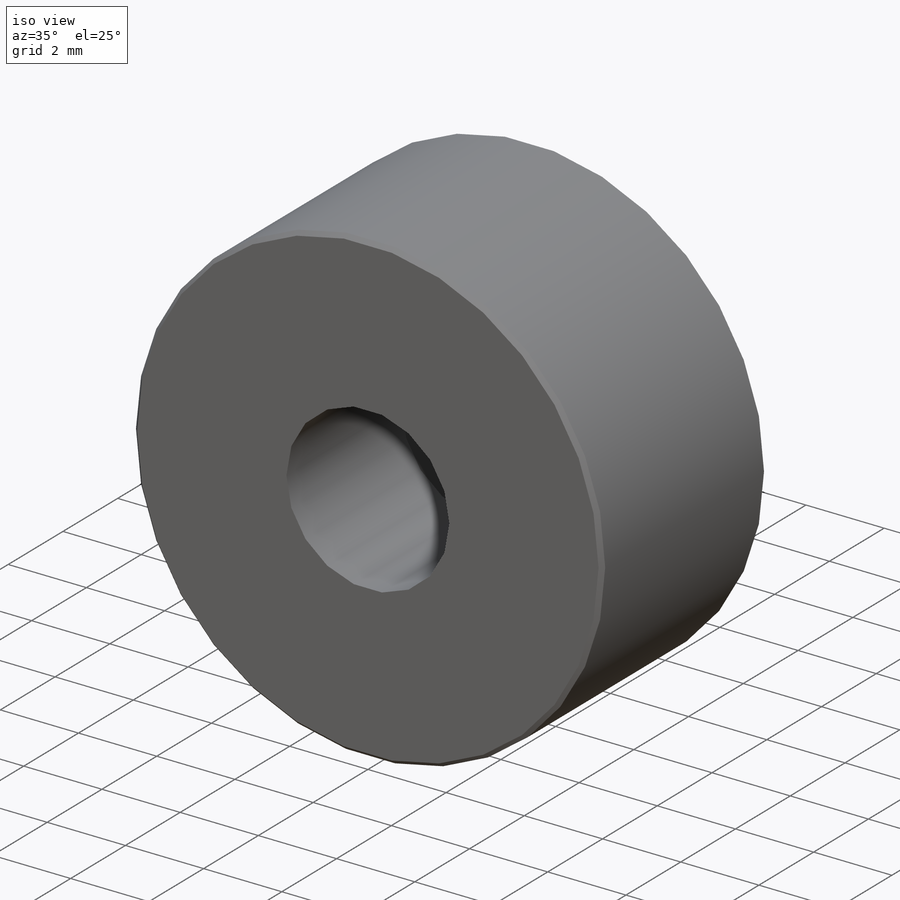
[diagram: iso view]
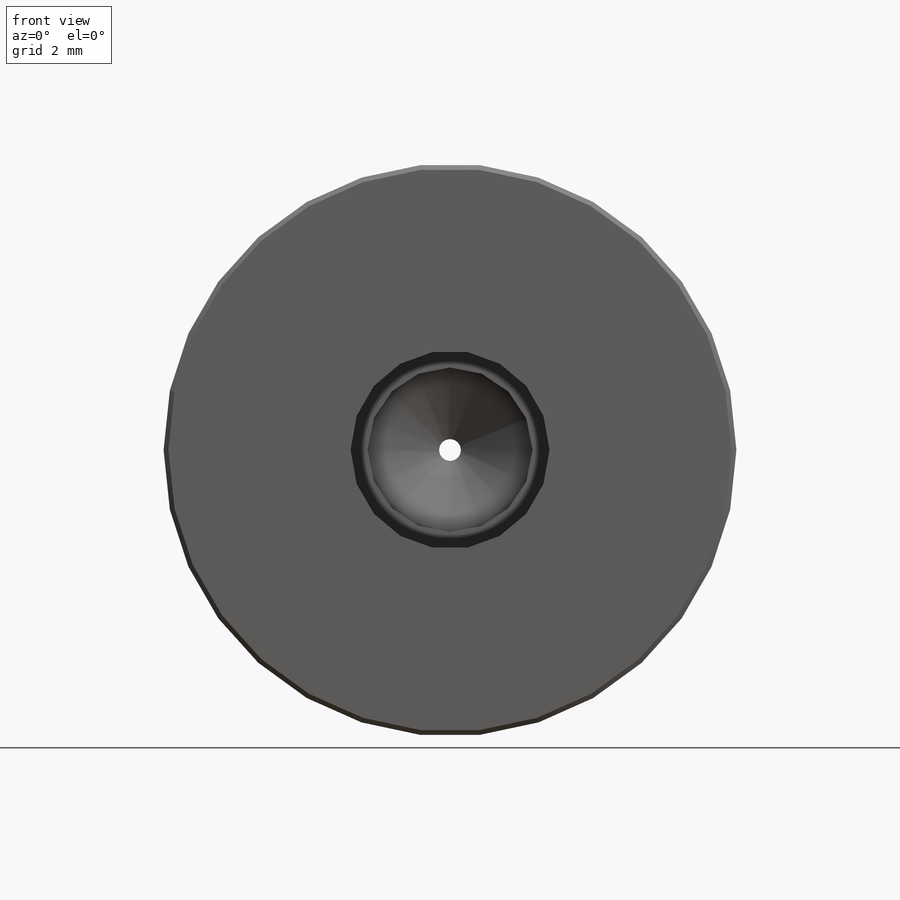
[diagram: front view]
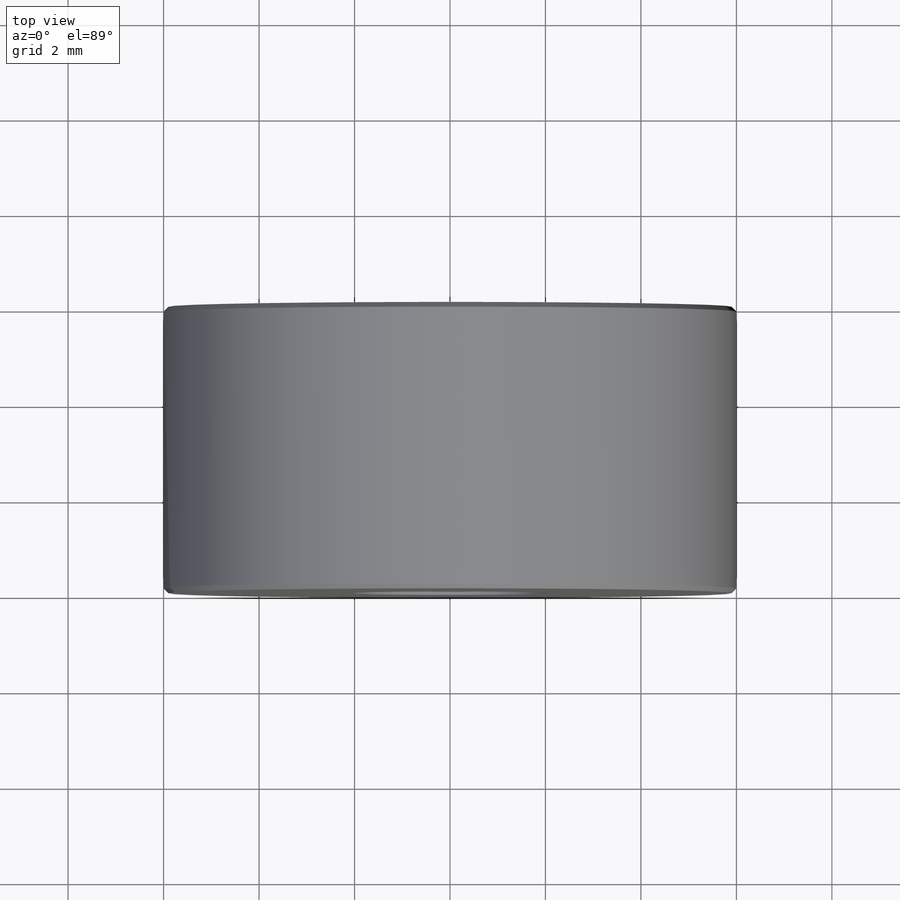
[diagram: top view]
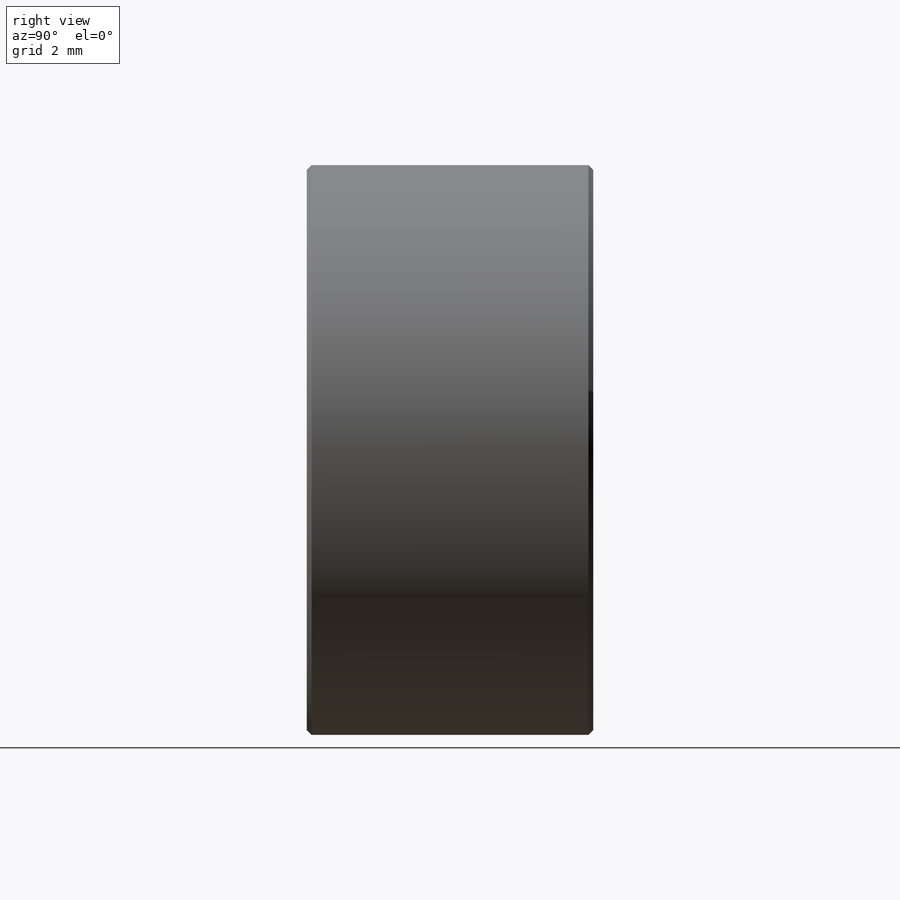
[diagram: right view]
SOLIDWORKS PART (.sldprt)
format: sldprt  version: not decoded by parser v0  size: 184,320 bytes
history: native  units: mm
features: sketch x3, material x1, extrude x1, hole x1, chamfer x1 + 1 further entry (+13 scaffold rows collapsed)
feature tree (21):
  scaffold x13  (default folders/planes/origin — collapsed)
  material  "6061-T6 (SS)"
  "Origin"  ID=-1
  sketch  "Sketch1"  dims[D1=~13.66666mm]
  extrude  "Boss-Extrude1"  Depth=6mm
  hole  "#8-32 Tapped Hole1"  Diameter=3.4544mm Depth=5.1mm
  sketch  "Sketch3"
  sketch  "Sketch2"  dims[hole-wizard template sketch: 29 standard entries collapsed; hole parameters kept: c8.Tap Drill Depth=5.1mm c8.Thread Major Dia.=4.1656mm c8.Thread Depth=4.2mm c8.D5=~14.816244mm c8.Drill Angle=118.0deg]
  chamfer  "Chamfer1"  Distance=0.1mm Angle=45deg
decode coverage: 5 of 6 modeling features carry decoded parameters; 1 rows unclassified (native names shown)
note: ~ marks probable driven/reference dimensions
note: suppression state not decoded; provenance and decode notes live in map.json
